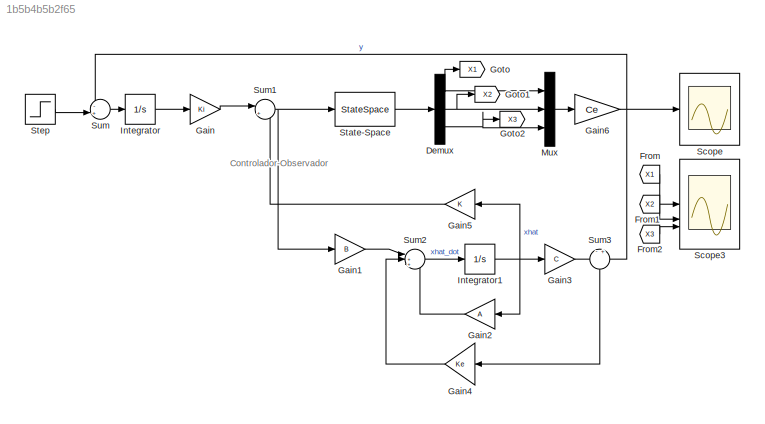
MODEL slx_1b5b4b5b2f65
KIND model
CONFIG AbsTol = auto
CONFIG EnableMultiTasking = off
CONFIG FixedStep = auto
CONFIG MaxStep = auto
CONFIG MinStep = auto
CONFIG RelTol = 1e-3
CONFIG SampleTimeConstraint = Unconstrained
CONFIG SolverName = VariableStepAuto
CONFIG StartTime = 0.0
CONFIG StopTime = 10.0
BLOCK [Demux] Demux
  Outputs = 3
BLOCK [From] From
  GotoTag = X1
BLOCK [From] From1
  GotoTag = X2
BLOCK [From] From2
  GotoTag = X3
BLOCK [Gain] Gain
  Gain = Ki
BLOCK [Gain] Gain1
  Gain = B
  Multiplication = Matrix(K*u)
BLOCK [Gain] Gain2
  Gain = A
  Multiplication = Matrix(K*u)
  NameLocation = top
BLOCK [Gain] Gain3
  Gain = C
  Multiplication = Matrix(K*u)
BLOCK [Gain] Gain4
  Gain = Ke
  Multiplication = Matrix(K*u)
  NameLocation = top
BLOCK [Gain] Gain5
  Gain = K
  Multiplication = Matrix(K*u)
  NameLocation = top
BLOCK [Gain] Gain6
  Gain = Ce
  Multiplication = Matrix(K*u)
BLOCK [Goto] Goto
  GotoTag = X1
BLOCK [Goto] Goto1
  GotoTag = X2
BLOCK [Goto] Goto2
  GotoTag = X3
BLOCK [Integrator] Integrator
BLOCK [Integrator] Integrator1
BLOCK [Mux] Mux
  DisplayOption = bar
  Inputs = 3
BLOCK [Scope] Scope
  Floating = off
  NumInputPorts = 1
  ScopeSpecificationString = Simulink.scopes.TimeScopeBlockCfg('CurrentConfiguration', extmgr.ConfigurationSet(extmgr.Configuration('Core','General UI',true),extmgr.Configuration('Core','Source UI',true),extmgr.Configuration('Sources','WiredSimulink',true,'DataLoggingVariableName','ScopeData1'),extmgr.Configuration('Visuals','Time Domain',true,'SerializedDisplays',{struct('MinYLimReal','-0.13034','MaxYLimReal','1.17306','YLab...<+1480ch>
BLOCK [Scope] Scope3
  Floating = off
  NumInputPorts = 3
  ScopeSpecificationString = Simulink.scopes.TimeScopeBlockCfg('CurrentConfiguration', extmgr.ConfigurationSet(extmgr.Configuration('Core','General UI',true),extmgr.Configuration('Core','Source UI',true),extmgr.Configuration('Sources','WiredSimulink',true),extmgr.Configuration('Visuals','Time Domain',true,'SerializedDisplays',{struct('MinYLimReal','-0.13034','MaxYLimReal','1.17306','YLabelReal','','MinYLimMag','0.00000','MaxY...<+2977ch>
BLOCK [StateSpace] State-Space
  A = Ae
  B = Be
  C = eye(3)
  D = zeros(3,1)
  InitialCondition = 0
BLOCK [Step] Step
  SampleTime = 0
  Time = 0
BLOCK [Sum] Sum
  Inputs = -+|
BLOCK [Sum] Sum1
  Inputs = |+-
BLOCK [Sum] Sum2
  Inputs = |+++
BLOCK [Sum] Sum3
  Inputs = -+
  NameLocation = left
ANNOTATION (root): Controlador-Observador
NET Demux:1 -> Goto:1, Mux:1
NET Demux:2 -> Goto1:1, Mux:2
NET Demux:3 -> Goto2:1, Mux:3
LINE From1:1 -> Scope3:2
LINE From2:1 -> Scope3:3
LINE From:1 -> Scope3:1
LINE Gain1:1 -> Sum2:1
LINE Gain2:1 -> Sum2:3
LINE Gain3:1 -> Sum3:1
LINE Gain4:1 -> Sum2:2
LINE Gain5:1 -> Sum1:2
NET Gain6:1 -> Scope:1, Sum3:2, Sum:1
LINE Gain:1 -> Sum1:1
NET Integrator1:1 -> Gain2:1, Gain3:1, Gain5:1
LINE Integrator:1 -> Gain:1
LINE Mux:1 -> Gain6:1
LINE State-Space:1 -> Demux:1
LINE Step:1 -> Sum:2
NET Sum1:1 -> Gain1:1, State-Space:1
LINE Sum2:1 -> Integrator1:1
LINE Sum3:1 -> Gain4:1
LINE Sum:1 -> Integrator:1
note: NET lines group one-source signal fan-out (src -> all destinations, sorted); 1:1 wires keep LINE
